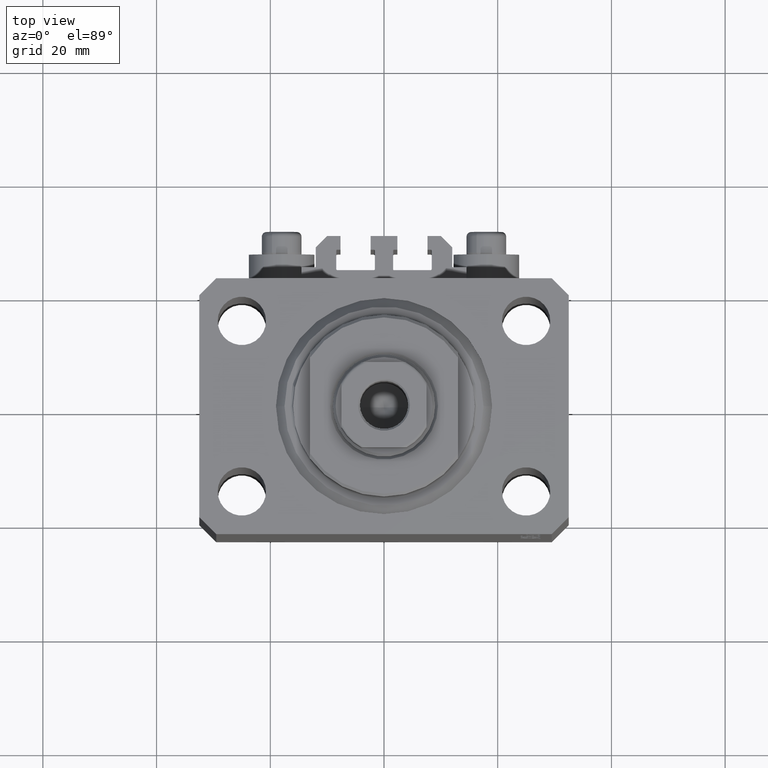
[diagram: clean part render]
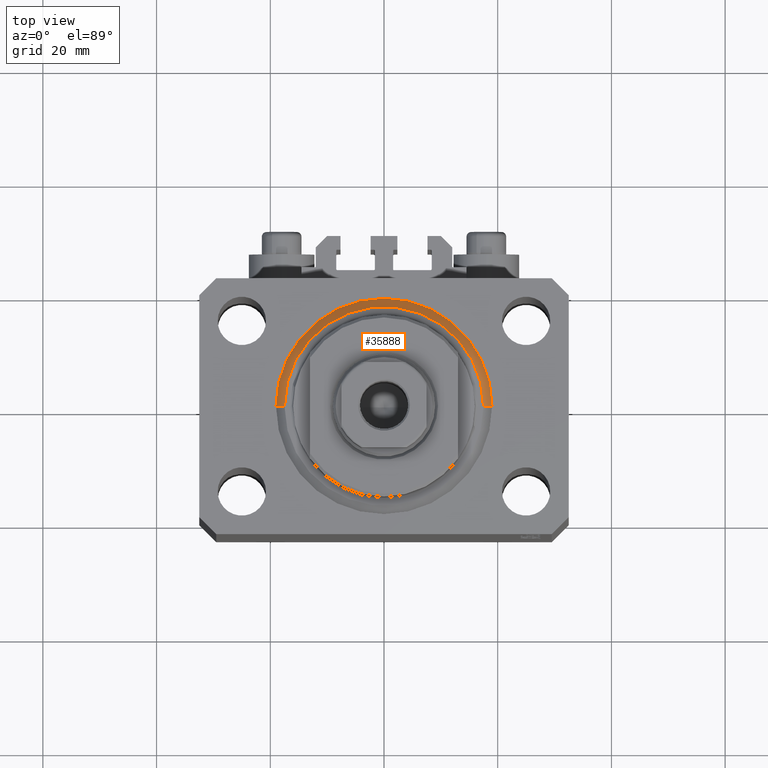
[diagram: same view with one face highlighted and labeled with its STEP entity id]
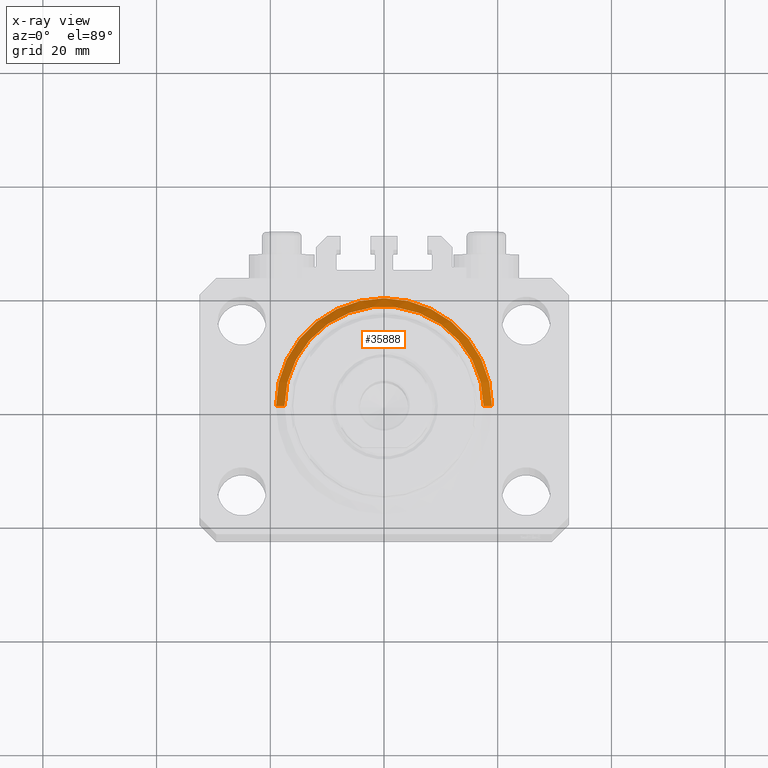
[diagram: x-ray of the same camera — body ghosted, the highlighted face saturated]
A machine part, top view. The second image highlights one B-rep face of the part: STEP entity #35888.
The next image is the same camera in x-ray: the body ghosted, the highlighted face saturated — about 0% of this face is hidden behind the body in this view.
In plain terms, the highlighted conical surface has half-angle 45 deg.
Its self-contained STEP definition (entity closure, byte-faithful):
#203 = DIRECTION ( 'NONE',  ( 1.000000000000000000, 0.000000000000000000, 0.000000000000000000 ) ) ;
#2518 = VERTEX_POINT ( 'NONE', #32055 ) ;
#2713 = CONICAL_SURFACE ( 'NONE', #29524, 19.00000000000000000, 0.7853981633974492782 ) ;
#4275 = CARTESIAN_POINT ( 'NONE',  ( 0.000000000000000000, 0.000000000000000000, 1.500000000000004885 ) ) ;
#7700 = LINE ( 'NONE', #18712, #42855 ) ;
#7871 = AXIS2_PLACEMENT_3D ( 'NONE', #4275, #43884, #203 ) ;
#9121 = EDGE_CURVE ( 'NONE', #23474, #45548, #39282, .T. ) ;
#15304 = DIRECTION ( 'NONE',  ( -0.7071067811865483499, 8.659560562354943952E-17, 0.7071067811865467956 ) ) ;
#15310 = ORIENTED_EDGE ( 'NONE', *, *, #30309, .F. ) ;
#15457 = CARTESIAN_POINT ( 'NONE',  ( -19.00000000000000000, 0.000000000000000000, 1.500000000000004885 ) ) ;
#15536 = VECTOR ( 'NONE', #15304, 1000.000000000000000 ) ;
#16052 = CARTESIAN_POINT ( 'NONE',  ( -17.49999999999999289, 2.234980408443919215E-15, 0.000000000000000000 ) ) ;
#17033 = DIRECTION ( 'NONE',  ( 1.000000000000000000, 0.000000000000000000, 0.000000000000000000 ) ) ;
#17124 = DIRECTION ( 'NONE',  ( -0.000000000000000000, -0.000000000000000000, 1.000000000000000000 ) ) ;
#18205 = LINE ( 'NONE', #44604, #15536 ) ;
#18712 = CARTESIAN_POINT ( 'NONE',  ( 19.00000000000000000, 0.000000000000000000, 1.500000000000004885 ) ) ;
#21987 = ORIENTED_EDGE ( 'NONE', *, *, #9121, .F. ) ;
#22122 = ORIENTED_EDGE ( 'NONE', *, *, #25482, .T. ) ;
#23474 = VERTEX_POINT ( 'NONE', #31005 ) ;
#23870 = FACE_OUTER_BOUND ( 'NONE', #37408, .T. ) ;
#25182 = DIRECTION ( 'NONE',  ( -0.000000000000000000, -0.000000000000000000, -1.000000000000000000 ) ) ;
#25482 = EDGE_CURVE ( 'NONE', #46079, #45548, #18205, .T. ) ;
#29524 = AXIS2_PLACEMENT_3D ( 'NONE', #38523, #17124, #42584 ) ;
#30309 = EDGE_CURVE ( 'NONE', #46079, #2518, #47136, .T. ) ;
#31005 = CARTESIAN_POINT ( 'NONE',  ( 19.00000000000000000, 2.326828918379970970E-15, 1.500000000000004885 ) ) ;
#32055 = CARTESIAN_POINT ( 'NONE',  ( 17.49999999999999289, 0.000000000000000000, 0.000000000000000000 ) ) ;
#33364 = DIRECTION ( 'NONE',  ( 0.7071067811865483499, 0.000000000000000000, 0.7071067811865467956 ) ) ;
#35888 = ADVANCED_FACE ( 'NONE', ( #23870 ), #2713, .T. ) ;
#37408 = EDGE_LOOP ( 'NONE', ( #15310, #22122, #21987, #45672 ) ) ;
#38523 = CARTESIAN_POINT ( 'NONE',  ( 0.000000000000000000, 0.000000000000000000, 1.500000000000004885 ) ) ;
#39282 = CIRCLE ( 'NONE', #7871, 19.00000000000000000 ) ;
#42584 = DIRECTION ( 'NONE',  ( 1.000000000000000000, 0.000000000000000000, 0.000000000000000000 ) ) ;
#42855 = VECTOR ( 'NONE', #33364, 1000.000000000000000 ) ;
#43307 = AXIS2_PLACEMENT_3D ( 'NONE', #46557, #25182, #17033 ) ;
#43884 = DIRECTION ( 'NONE',  ( -0.000000000000000000, -0.000000000000000000, 1.000000000000000000 ) ) ;
#44604 = CARTESIAN_POINT ( 'NONE',  ( -19.00000000000000000, 2.326828918379970970E-15, 1.500000000000004885 ) ) ;
#45548 = VERTEX_POINT ( 'NONE', #15457 ) ;
#45672 = ORIENTED_EDGE ( 'NONE', *, *, #46121, .F. ) ;
#46079 = VERTEX_POINT ( 'NONE', #16052 ) ;
#46121 = EDGE_CURVE ( 'NONE', #2518, #23474, #7700, .T. ) ;
#46557 = CARTESIAN_POINT ( 'NONE',  ( 0.000000000000000000, 0.000000000000000000, 0.000000000000000000 ) ) ;
#47136 = CIRCLE ( 'NONE', #43307, 17.49999999999999289 ) ;